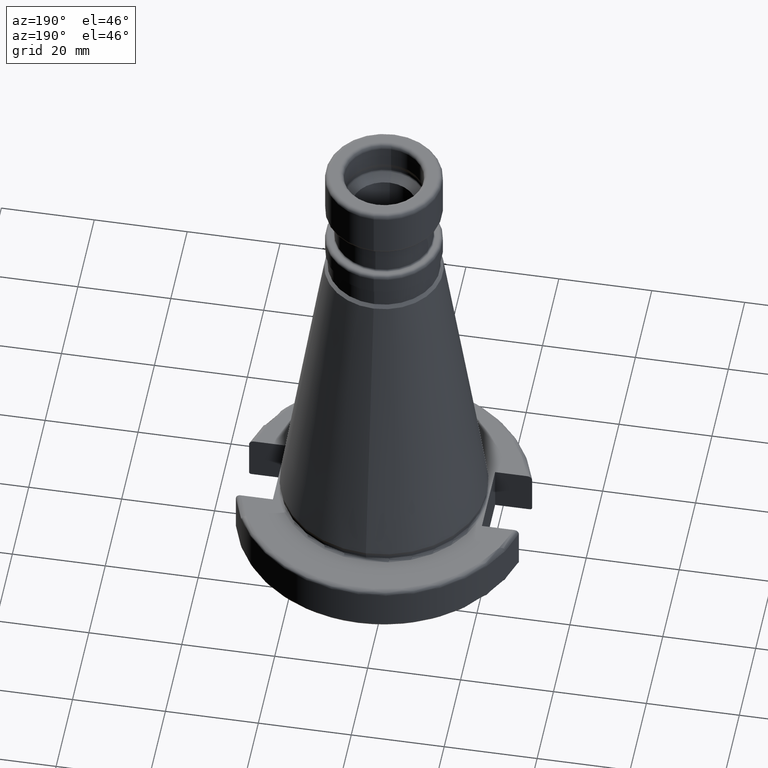
[diagram: clean part render]
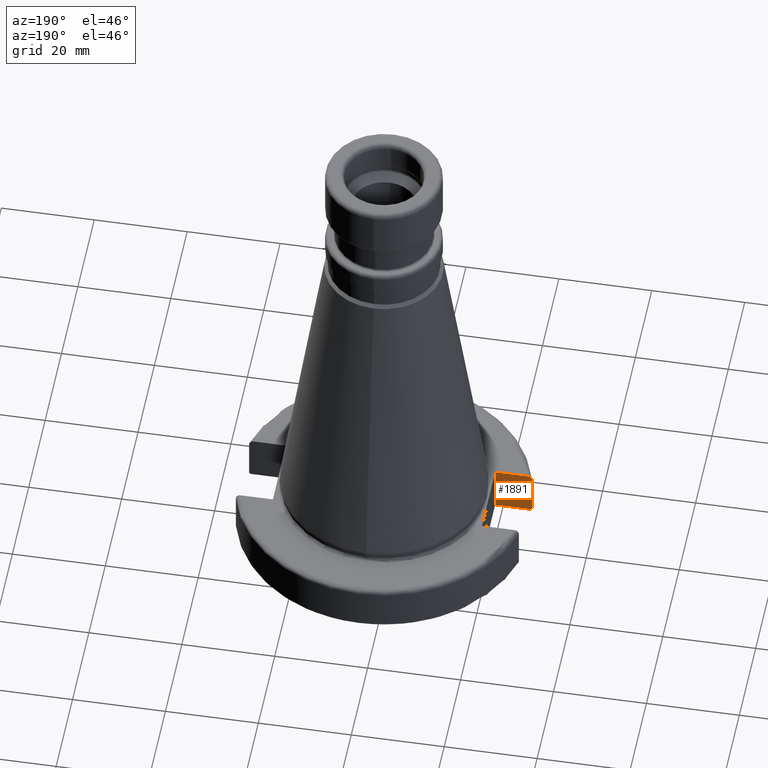
[diagram: same view with one face highlighted and labeled with its STEP entity id]
A machine part, auxiliary view. The second image highlights one B-rep face of the part: STEP entity #1891.
In plain terms, the highlighted planar face has unit normal (0, -1, 0).
Its self-contained STEP definition (entity closure, byte-faithful):
#518=DIRECTION('',(0,0,-1));
#519=VECTOR('',#518,10);
#520=CARTESIAN_POINT('',(-22.5,-8.05,10));
#521=LINE('',#520,#519);
#522=DIRECTION('',(1,0,0));
#523=VECTOR('',#522,7.436557918371);
#524=CARTESIAN_POINT('',(-29.93655791837,-8.05,0));
#525=LINE('',#524,#523);
#556=DIRECTION('',(1,0,0));
#557=VECTOR('',#556,6.918489084248);
#558=CARTESIAN_POINT('',(-29.41848908425,-8.05,10));
#559=LINE('',#558,#557);
#620=CARTESIAN_POINT('',(-30.45402272279,-8.05,0.5));
#621=CARTESIAN_POINT('',(-30.45402272279,-8.05,0.4614131029941));
#622=CARTESIAN_POINT('',(-30.44506277641,-8.05,0.3865490070227));
#623=CARTESIAN_POINT('',(-30.40543296220,-8.05,0.2783586146477));
#624=CARTESIAN_POINT('',(-30.34218372508,-8.05,0.1827362511104));
#625=CARTESIAN_POINT('',(-30.25921353251,-8.05,0.1037567468806));
#626=CARTESIAN_POINT('',(-30.16099862580,-8.05,0.04485296280831));
#627=CARTESIAN_POINT('',(-30.05161500374,-8.05,0.008336959581468));
#628=CARTESIAN_POINT('',(-29.97566105468,-8.05,0));
#629=CARTESIAN_POINT('',(-29.93655791837,-8.05,0));
#679=DIRECTION('',(0,0,-1));
#680=VECTOR('',#679,8.5);
#681=CARTESIAN_POINT('',(-30.45402272279,-8.05,9));
#682=LINE('',#681,#680);
#700=CARTESIAN_POINT('',(-29.41848908425,-8.05,10));
#701=CARTESIAN_POINT('',(-29.48746900286,-8.05,10));
#702=CARTESIAN_POINT('',(-29.62252618905,-8.05,9.987034910241));
#703=CARTESIAN_POINT('',(-29.82047098457,-8.05,9.928877763900));
#704=CARTESIAN_POINT('',(-30.00157569792,-8.05,9.834451695568));
#705=CARTESIAN_POINT('',(-30.15911124968,-8.05,9.708329536691));
#706=CARTESIAN_POINT('',(-30.28716348063,-8.05,9.556081177445));
#707=CARTESIAN_POINT('',(-30.38189440266,-8.05,9.383880744593));
#708=CARTESIAN_POINT('',(-30.44067909365,-8.05,9.195764788873));
#709=CARTESIAN_POINT('',(-30.45402272279,-8.05,9.066295674189));
#710=CARTESIAN_POINT('',(-30.45402272279,-8.05,9));
#983=CARTESIAN_POINT('',(-29.93655791837,-8.05,0));
#984=CARTESIAN_POINT('',(-22.5,-8.05,0));
#985=VERTEX_POINT('',#983);
#986=VERTEX_POINT('',#984);
#1007=CARTESIAN_POINT('',(-29.41848908425,-8.05,10));
#1008=CARTESIAN_POINT('',(-22.5,-8.05,10));
#1009=VERTEX_POINT('',#1007);
#1010=VERTEX_POINT('',#1008);
#1031=CARTESIAN_POINT('',(-30.45402272279,-8.05,9));
#1032=CARTESIAN_POINT('',(-30.45402272279,-8.05,0.5));
#1033=VERTEX_POINT('',#1031);
#1034=VERTEX_POINT('',#1032);
#1874=CARTESIAN_POINT('',(-38.6,-8.05,105));
#1875=DIRECTION('',(0,-1,0));
#1876=DIRECTION('',(1,0,0));
#1877=AXIS2_PLACEMENT_3D('',#1874,#1875,#1876);
#1878=PLANE('',#1877);
#1879=ORIENTED_EDGE('',*,*,#1850,.T.);
#1880=ORIENTED_EDGE('',*,*,#1840,.F.);
#1882=ORIENTED_EDGE('',*,*,#1881,.F.);
#1884=ORIENTED_EDGE('',*,*,#1883,.T.);
#1886=ORIENTED_EDGE('',*,*,#1885,.T.);
#1888=ORIENTED_EDGE('',*,*,#1887,.T.);
#1889=EDGE_LOOP('',(#1879,#1880,#1882,#1884,#1886,#1888));
#1890=FACE_OUTER_BOUND('',#1889,.F.);
#1891=ADVANCED_FACE('',(#1890),#1878,.F.);
#630=B_SPLINE_CURVE_WITH_KNOTS('',3,(#620,#621,#622,#623,#624,#625,#626,#627,
#628,#629),.UNSPECIFIED.,.F.,.F.,(4,1,1,1,1,1,1,4),(0,0.1428571428571,
0.2857142857143,0.4285714285714,0.5714285714286,0.7142857142857,
0.8571428571429,1),.UNSPECIFIED.);
#711=B_SPLINE_CURVE_WITH_KNOTS('',3,(#700,#701,#702,#703,#704,#705,#706,#707,
#708,#709,#710),.UNSPECIFIED.,.F.,.F.,(4,1,1,1,1,1,1,1,4),(0,0.125,0.25,
0.375,0.5,0.625,0.75,0.875,1),.UNSPECIFIED.);
#1840=EDGE_CURVE('',#1010,#986,#521,.T.);
#1850=EDGE_CURVE('',#985,#986,#525,.T.);
#1881=EDGE_CURVE('',#1009,#1010,#559,.T.);
#1883=EDGE_CURVE('',#1009,#1033,#711,.T.);
#1885=EDGE_CURVE('',#1033,#1034,#682,.T.);
#1887=EDGE_CURVE('',#1034,#985,#630,.T.);